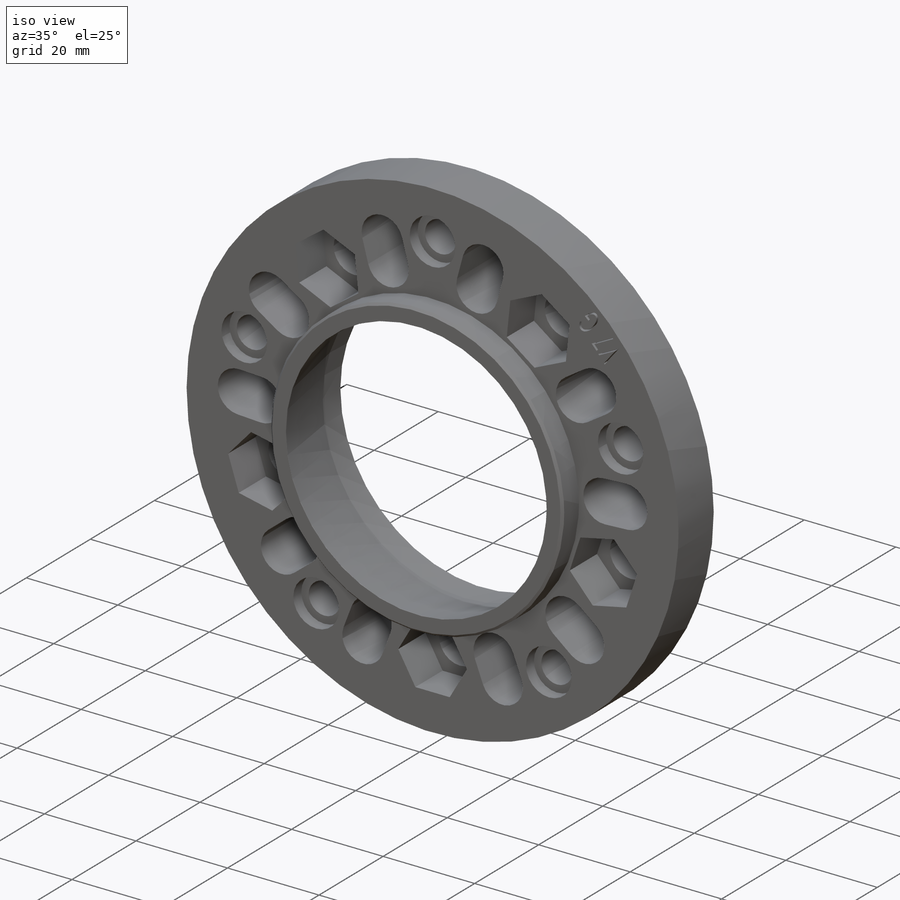
[diagram: iso view]
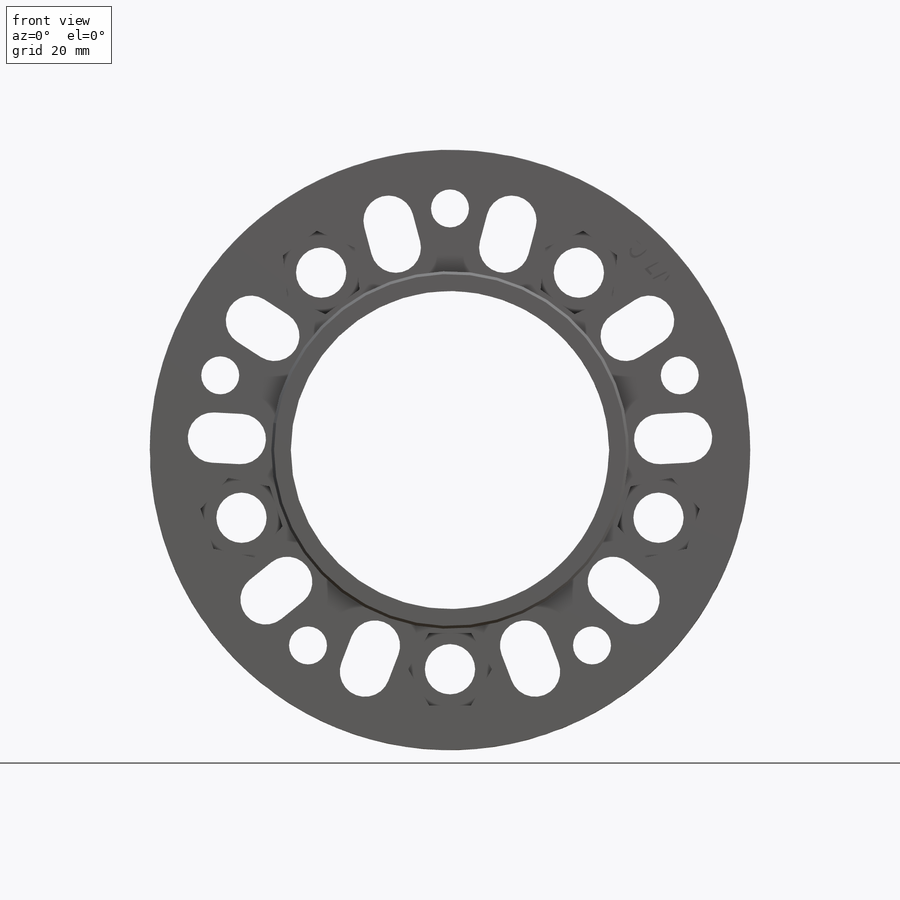
[diagram: front view]
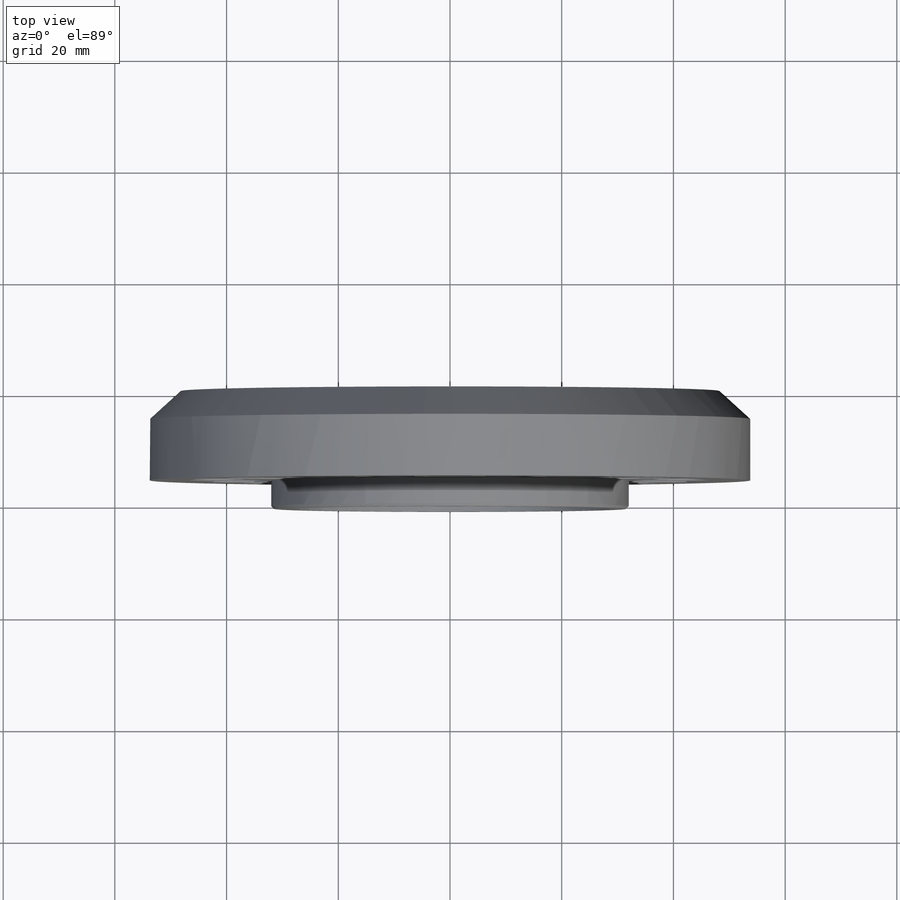
[diagram: top view]
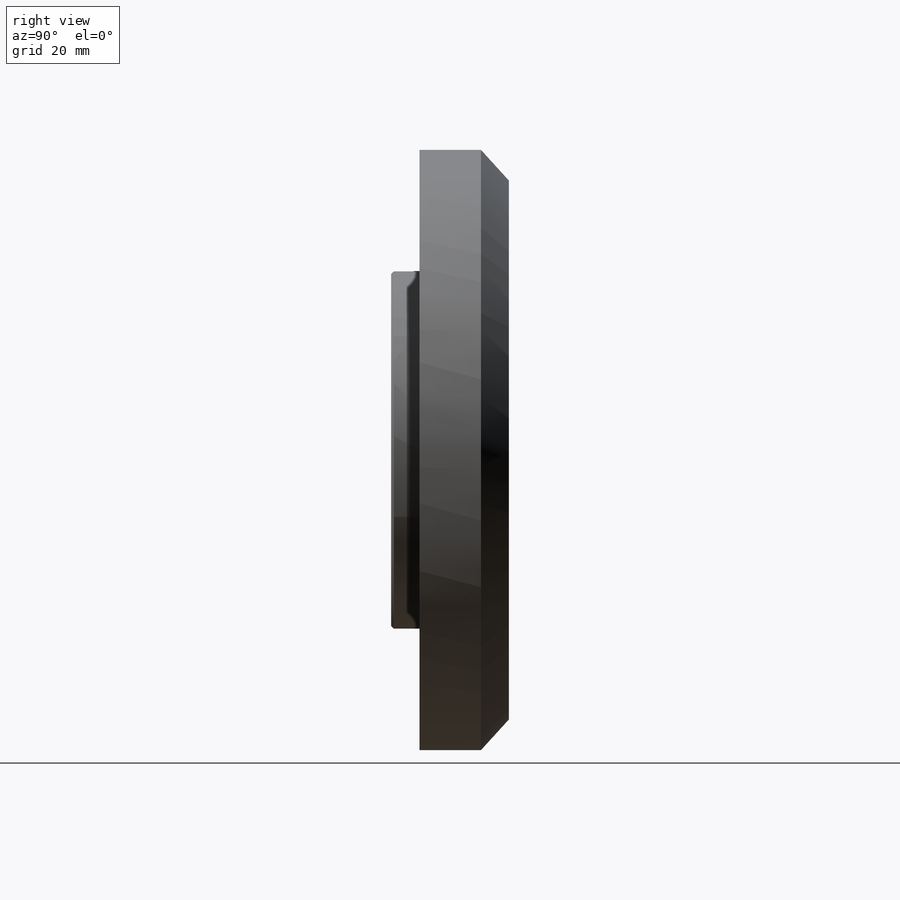
[diagram: right view]
SOLIDWORKS PART (.sldprt)
format: sldprt  version: not decoded by parser v0  size: 631,808 bytes
history: native  units: mm
features: sketch x12, cut_extrude x10, thread x5, chamfer x4, plane x3, extrude x2, material x1 (+10 scaffold rows collapsed)
feature tree (47):
  scaffold x10  (default folders/planes/origin — collapsed)
  material  "Matériau <non spécifié>"
  plane  "Plan de face"
  plane  "Plan de dessus"
  plane  "Plan de droite"
  sketch  "Esquisse1"  dims[D1=107.5mm]
  extrude  "Boss.-Extru.1"  Depth=20mm
  sketch  "Esquisse2"  dims[c1.D1=9.0mm c1.D2=21.25mm c2.D1=~4.155438mm c2.D2=86.5mm c2.D3=6.8mm c2.D4=8.0mm c3.D2=42.5mm c3.D1=5.0]
  cut_extrude  "Enlèv. mat.-Extru.1"  [1 undecoded]
  thread  "Représentation de filetage1"  Diameter=8mm  [1 undecoded]
  thread  "Représentation de filetage2"  Diameter=8mm  [1 undecoded]
  thread  "Représentation de filetage3"  Diameter=8mm  [1 undecoded]
  thread  "Représentation de filetage4"  Diameter=8mm  [1 undecoded]
  thread  "Représentation de filetage5"  Diameter=8mm  [1 undecoded]
  sketch  "Esquisse3"  dims[D1=~26.792554mm]
  extrude  "Boss.-Extru.2"  Depth=5mm
  sketch  "Esquisse4"  dims[D1=~6.496998mm]
  cut_extrude  "Enlèv. mat.-Extru.2"  Depth=6mm
  sketch  "Esquisse5"  dims[D1=57.0mm]
  cut_extrude  "Enlèv. mat.-Extru.3"  [1 undecoded]
  sketch  "Esquisse6"  dims[c1.D1=6.0mm c1.D3=~5.075829mm c1.D4=9.0mm c1.D5=78.5mm c1.D6=76.66mm c2.D1=42.5mm c3.D1=36.0deg c3.D2=~47.241531mm c4.D2=36.0deg c4.D3=~47.116065mm c5.D3=5.0]
  cut_extrude  "Enlèv. mat.-Extru.4"  [1 undecoded]
  chamfer  "Chanfrein1"  Distance=5.5mm
  sketch  "Esquisse7"
  cut_extrude  "Enlèv. mat.-Extru.5"  Depth=4mm
  sketch  "Esquisse8"
  cut_extrude  "Enlèv. mat.-Extru.6"  Depth=3.9mm
  chamfer  "Chanfrein2"  Distance=0.5mm Angle=45deg
  chamfer  "Chanfrein3"  Distance=0.5mm Angle=45deg
  sketch  "Esquisse9"  dims[D1=105.0mm]
  cut_extrude  "Enlèv. mat.-Extru.7"  Depth=1mm
  chamfer  "Chanfrein4"  Distance=2.5mm
  sketch  "Esquisse11"  dims[c1.D1=~6.32603mm c2.D1=5.0]
  cut_extrude  "Enlèv. mat.-Extru.9"  Depth=2.5mm
  sketch  "Esquisse12"  dims[c1.D1=64.0mm c1.D2=64.0mm c2.D1=32.965mm c2.D2=32.965mm c2.D3=~12.998516mm c2.D4=~12.998516mm c2.D5=~12.998516mm c2.D6=5.0]
  cut_extrude  "Enlèv. mat.-Extru.10"  Depth=8.5mm
  sketch  "Esquisse13"  dims[c1.D1=~78.677462mm c1.D2=62.0mm c2.D1=96.5mm c2.D2=63.0mm c2.D3=~4.765968mm c3.D1=80.0mm c3.D3=80.0mm c3.D4=~3.773395mm c4.D1=8.625mm c4.D2=8.625mm c5.D1=~40.324986mm c5.D2=~37.690115mm c5.D3=~42.959858mm c5.D4=5.2mm c6.D2=43.0mm c6.D3=37.8mm c6.D1=37.8mm c7.D3=90.0deg c8.D3=5.0mm c8.D1=5.0mm c8.D2=37.5mm c9.D3=39.25mm c10.D3=18.0deg c10.D4=48.25mm c11.D4=18.0deg c11.D5=5.0mm c11.D2=5.0mm c12.D5=9.0mm c12.D1=~69.900868mm c13.D1=16.0deg c13.D3=40.0mm c14.D3=18.0deg c14.D1=~69.900868mm c15.D1=15.0deg c15.D2=~38.042261mm c16.D2=15.0deg c16.D4=40.0mm c16.D5=5.0mm c16.D6=9.0mm c16.D7=9.0mm c16.D8=5.0mm c16.D9=~38.431813mm c17.D2=~50.915822mm c18.D2=15.0deg c18.D9=40.0mm c18.D10=0.0mm c18.D11=5.0mm c18.D7=5.0mm c19.D7=2.0 c19.D8=5.0]
  cut_extrude  "Enlèv. mat.-Extru.11"  [1 undecoded]
decode coverage: 27 of 33 modeling features carry decoded parameters
note: ~ marks probable driven/reference dimensions
note: 9 parameter values undecoded
summary: no parameter record found for 4 features
note: suppression state not decoded; provenance and decode notes live in map.json
